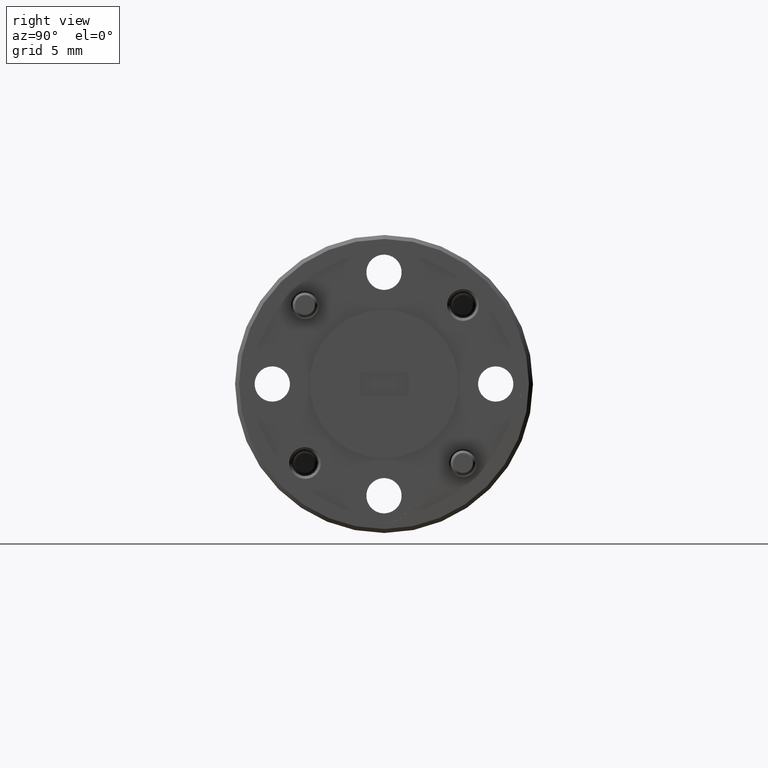
[diagram: clean part render]
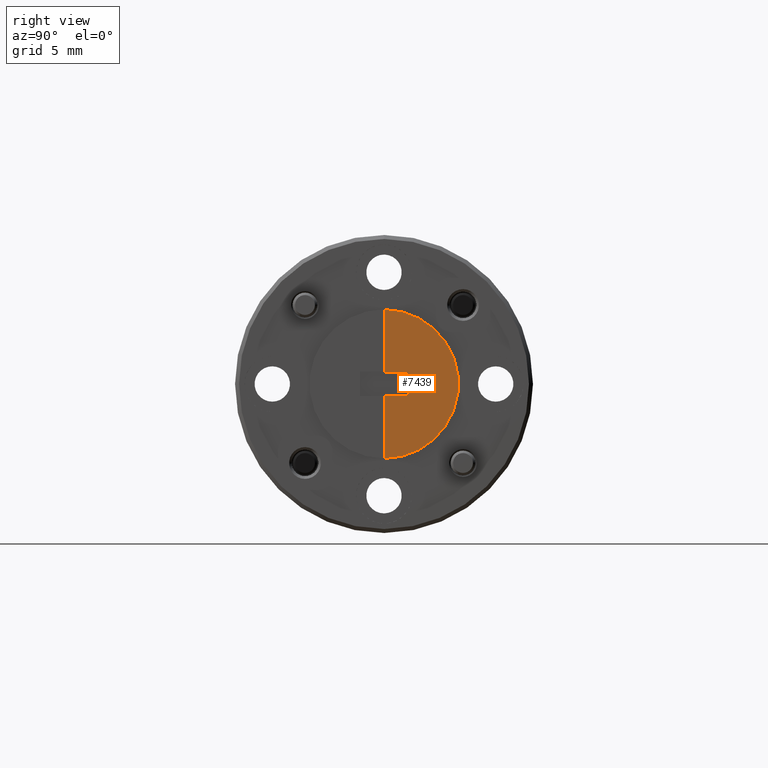
[diagram: same view with one face highlighted and labeled with its STEP entity id]
A machine part, right view. The second image highlights one B-rep face of the part: STEP entity #7439.
In plain terms, the highlighted planar face has unit normal (-1, 0, 0).
Its self-contained STEP definition (entity closure, byte-faithful):
#145 = VERTEX_POINT ( 'NONE', #11403 ) ;
#290 = LINE ( 'NONE', #7874, #3283 ) ;
#936 = EDGE_CURVE ( 'NONE', #8288, #2991, #10021, .T. ) ;
#1166 = EDGE_LOOP ( 'NONE', ( #10094, #5985, #1223, #3221, #10231, #4910 ) ) ;
#1223 = ORIENTED_EDGE ( 'NONE', *, *, #6172, .F. ) ;
#1513 = CARTESIAN_POINT ( 'NONE',  ( 1.052451282502859797, 0.6965558021064788274, 1.251953514682003110 ) ) ;
#1978 = DIRECTION ( 'NONE',  ( 0.000000000000000000, 0.000000000000000000, -1.000000000000000000 ) ) ;
#2841 = LINE ( 'NONE', #11459, #9607 ) ;
#2991 = VERTEX_POINT ( 'NONE', #11178 ) ;
#3209 = CARTESIAN_POINT ( 'NONE',  ( 1.052451282502860019, 0.7560558021064788248, 0.8414535146820031342 ) ) ;
#3221 = ORIENTED_EDGE ( 'NONE', *, *, #4169, .F. ) ;
#3283 = VECTOR ( 'NONE', #4099, 39.37007874015748143 ) ;
#3340 = DIRECTION ( 'NONE',  ( 1.000000000000000000, 0.000000000000000000, 0.000000000000000000 ) ) ;
#3504 = CARTESIAN_POINT ( 'NONE',  ( 1.052451282502860019, 0.7560558021064788248, 0.9024535146820030773 ) ) ;
#3523 = FACE_OUTER_BOUND ( 'NONE', #1166, .T. ) ;
#4099 = DIRECTION ( 'NONE',  ( 0.000000000000000000, 0.000000000000000000, 1.000000000000000000 ) ) ;
#4169 = EDGE_CURVE ( 'NONE', #8288, #6909, #290, .T. ) ;
#4254 = LINE ( 'NONE', #1513, #7089 ) ;
#4562 = LINE ( 'NONE', #3504, #11516 ) ;
#4869 = CIRCLE ( 'NONE', #6641, 0.1874999999999999722 ) ;
#4910 = ORIENTED_EDGE ( 'NONE', *, *, #7542, .T. ) ;
#5282 = VERTEX_POINT ( 'NONE', #5475 ) ;
#5440 = VERTEX_POINT ( 'NONE', #9920 ) ;
#5475 = CARTESIAN_POINT ( 'NONE',  ( 1.052451282502860019, 0.6965558021064788274, 0.9024535146820030773 ) ) ;
#5985 = ORIENTED_EDGE ( 'NONE', *, *, #8146, .T. ) ;
#6172 = EDGE_CURVE ( 'NONE', #6909, #5282, #4562, .T. ) ;
#6361 = DIRECTION ( 'NONE',  ( -0.000000000000000000, -1.000000000000000000, -0.000000000000000000 ) ) ;
#6641 = AXIS2_PLACEMENT_3D ( 'NONE', #8515, #3340, #10300 ) ;
#6909 = VERTEX_POINT ( 'NONE', #7277 ) ;
#7003 = DIRECTION ( 'NONE',  ( -0.000000000000000000, -1.000000000000000000, -0.000000000000000000 ) ) ;
#7038 = VECTOR ( 'NONE', #7003, 39.37007874015748143 ) ;
#7089 = VECTOR ( 'NONE', #8036, 39.37007874015748143 ) ;
#7277 = CARTESIAN_POINT ( 'NONE',  ( 1.052451282502860019, 0.7560558021064788248, 0.9024535146820030773 ) ) ;
#7318 = PLANE ( 'NONE',  #8825 ) ;
#7365 = CARTESIAN_POINT ( 'NONE',  ( 1.052451282502859797, 1.076555802106478721, 1.251953514682003110 ) ) ;
#7439 = ADVANCED_FACE ( 'NONE', ( #3523 ), #7318, .F. ) ;
#7542 = EDGE_CURVE ( 'NONE', #2991, #5440, #2841, .T. ) ;
#7874 = CARTESIAN_POINT ( 'NONE',  ( 1.052451282502860019, 0.7560558021064788248, 0.8414535146820031342 ) ) ;
#8036 = DIRECTION ( 'NONE',  ( 0.000000000000000000, 0.000000000000000000, -1.000000000000000000 ) ) ;
#8146 = EDGE_CURVE ( 'NONE', #145, #5282, #4254, .T. ) ;
#8231 = DIRECTION ( 'NONE',  ( -1.000000000000000000, 0.000000000000000000, 0.000000000000000000 ) ) ;
#8288 = VERTEX_POINT ( 'NONE', #10061 ) ;
#8515 = CARTESIAN_POINT ( 'NONE',  ( 1.052451282502860019, 0.6950558021064788816, 0.8719535146820031057 ) ) ;
#8825 = AXIS2_PLACEMENT_3D ( 'NONE', #7365, #8231, #12070 ) ;
#9563 = EDGE_CURVE ( 'NONE', #5440, #145, #4869, .T. ) ;
#9607 = VECTOR ( 'NONE', #1978, 39.37007874015748143 ) ;
#9920 = CARTESIAN_POINT ( 'NONE',  ( 1.052451282502860019, 0.6965558021064788274, 0.6844595147780062616 ) ) ;
#10021 = LINE ( 'NONE', #3209, #7038 ) ;
#10061 = CARTESIAN_POINT ( 'NONE',  ( 1.052451282502860019, 0.7560558021064788248, 0.8414535146820031342 ) ) ;
#10094 = ORIENTED_EDGE ( 'NONE', *, *, #9563, .T. ) ;
#10231 = ORIENTED_EDGE ( 'NONE', *, *, #936, .T. ) ;
#10300 = DIRECTION ( 'NONE',  ( 0.000000000000000000, 0.000000000000000000, -1.000000000000000000 ) ) ;
#11178 = CARTESIAN_POINT ( 'NONE',  ( 1.052451282502860019, 0.6965558021064788274, 0.8414535146820031342 ) ) ;
#11403 = CARTESIAN_POINT ( 'NONE',  ( 1.052451282502859797, 0.6965558021064788274, 1.059447514586000061 ) ) ;
#11459 = CARTESIAN_POINT ( 'NONE',  ( 1.052451282502859797, 0.6965558021064788274, 1.251953514682003110 ) ) ;
#11516 = VECTOR ( 'NONE', #6361, 39.37007874015748143 ) ;
#12070 = DIRECTION ( 'NONE',  ( 0.000000000000000000, 0.000000000000000000, 1.000000000000000000 ) ) ;